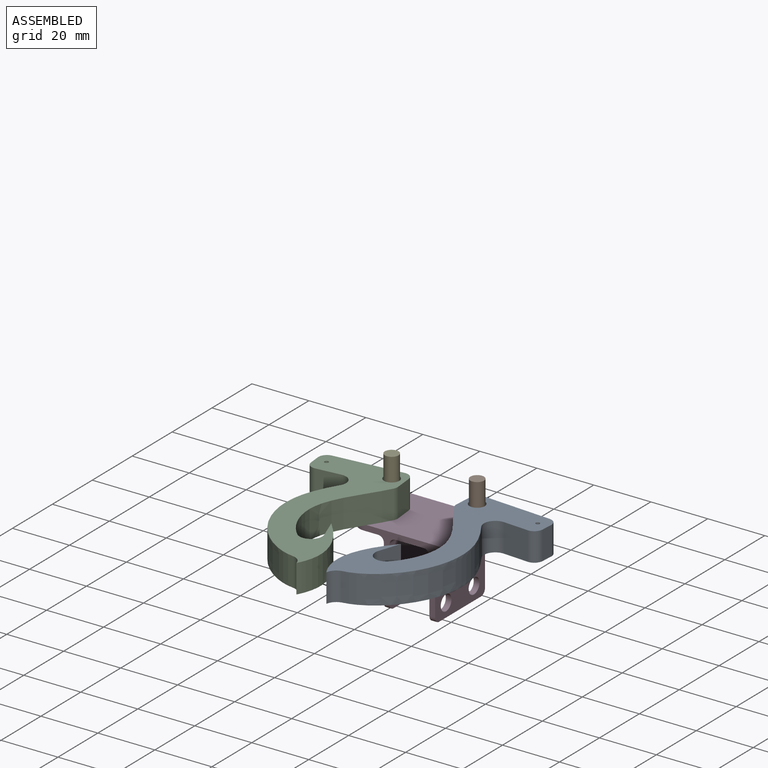
[diagram: assembled view]
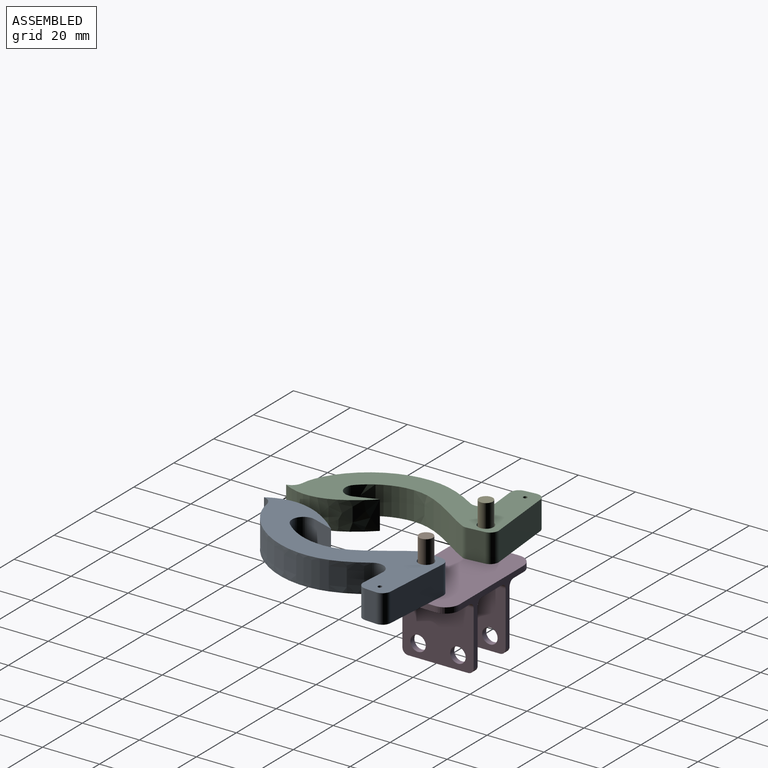
[diagram: assembled view, second angle]
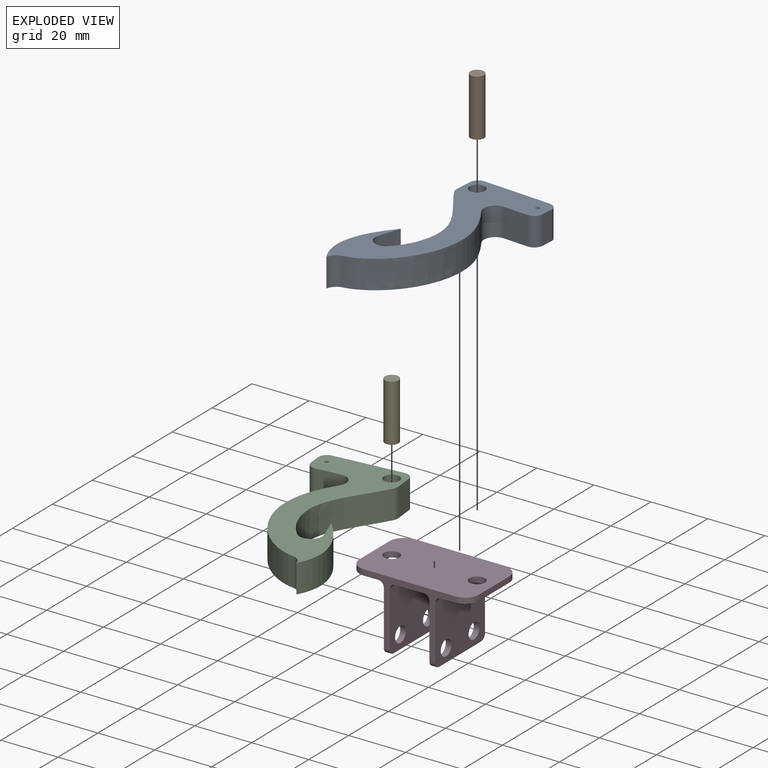
[diagram: exploded view]
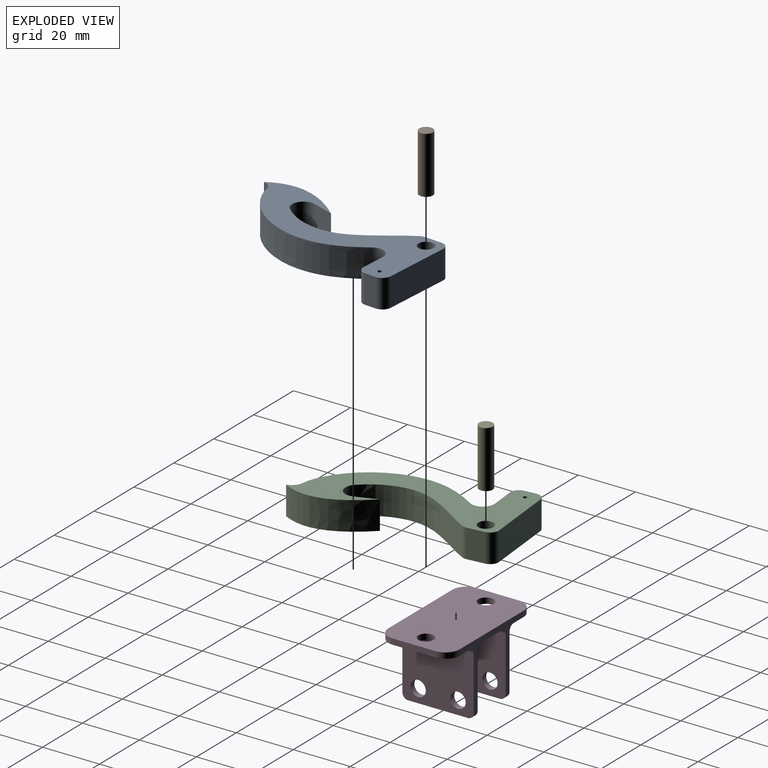
[diagram: exploded view, second angle]
ASSEMBLY  parts=5 mates=4
PART A: 19 faces, bbox 68.7x35.1x10 mm
  f0: extruded ~28.44x10mm, area 310.7mm2, adj f1,f10,f11,f18
  f1: plane 10x7.67mm, normal (0.26,-0.97,0), area 79.3mm2, adj f0,f10,f11,f16
  f2: extruded ~40.74x14.43mm, area 463.6mm2, adj f10,f11,f12,f16
  f3: plane 10x6.16mm, normal (0,1,0), area 61.6mm2, adj f10,f11,f12,f13
  f4: plane 24x10mm, normal (-1,0,0), area 240mm2, adj f10,f11,f13,f14
  f5: plane 10x4mm, normal (0,-1,0), area 40mm2, adj f10,f11,f14,f15
  f6: plane 10x8.76mm, normal (1,0,0), area 87.6mm2, adj f10,f11,f15,f17
  f7: extruded ~48.7x19.96mm, area 594.5mm2, adj f10,f11,f17,f18
  f8: cylinder r=2.7mm len=10mm, axis (0,0,-1), area 169.6mm2, adj f10,f11
  f9: cylinder r=0.7mm len=10mm, axis (0,0,-1), area 44mm2, adj f10,f11
  f10: plane 68.66x35.06mm, normal (0,0,1), area 915.5mm2, adj f0,f1,f2,f3,f4,f5,f6,f7
  f11: plane 68.66x35.06mm, normal (0,0,-1), area 915.5mm2, adj f0,f1,f2,f3,f4,f5,f6,f7
  f12: cylinder r=3mm len=10mm, axis (0,0,-1), area 16.8mm2, adj f2,f3,f10,f11
  f13: cylinder r=3mm len=10mm, axis (0,0,-1), area 47.1mm2, adj f3,f4,f10,f11
  f14: cylinder r=3mm len=10mm, axis (0,0,-1), area 47.1mm2, adj f4,f5,f10,f11
  f15: cylinder r=3mm len=10mm, axis (0,0,-1), area 47.1mm2, adj f5,f6,f10,f11
  f16: cylinder r=4mm len=10mm, axis (0,0,-1), area 108mm2, adj f1,f2,f10,f11
  f17: cylinder r=4mm len=10mm, axis (0,0,-1), area 88.7mm2, adj f6,f7,f10,f11
  f18: cylinder r=4mm len=10mm, axis (0,0,-1), area 50.6mm2, adj f0,f7,f10,f11
PART B: 3 faces, bbox 4.8x4.8x20 mm
  f0: cylinder r=2.4mm len=20mm, axis (0,0,-1), area 301.6mm2, adj f1,f2
  f1: plane 4.8x4.8mm, normal (0,0,1), area 18.1mm2, adj f0
  f2: plane 4.8x4.8mm, normal (0,0,-1), area 18.1mm2, adj f0
PART C: same geometry as A
PART D: 32 faces, bbox 42x25x25 mm
  f0: plane 25x21mm, normal (1,0,0), area 477.5mm2, adj f4,f6,f15,f18,f19,f24,f25,f28
  f1: plane 25x21mm, normal (-1,0,0), area 477.5mm2, adj f4,f6,f15,f18,f19,f24,f25,f30
  f2: plane 25x21mm, normal (1,0,0), area 477.5mm2, adj f4,f6,f14,f16,f17,f26,f27,f29
  f3: plane 25x21mm, normal (-1,0,0), area 477.5mm2, adj f4,f6,f14,f16,f17,f26,f27,f31
  f4: plane 32x23mm, normal (0,-1,0), area 151.4mm2, adj f0,f1,f2,f3,f8,f9,f10,f13
  f5: plane 15x2mm, normal (1,0,0), area 30mm2, adj f8,f9,f20,f21
  f6: plane 32x23mm, normal (0,1,0), area 151.4mm2, adj f0,f1,f2,f3,f8,f9,f10,f13
  f7: cylinder r=2.7mm len=5.4mm, axis (0,0,-1), area 33.9mm2, adj f8,f9
  f8: plane 25x10mm, normal (0,0,1), area 216.4mm2, adj f4,f5,f6,f7,f20,f21,f28
  f9: plane 42x25mm, normal (0,0,-1), area 982.7mm2, adj f4,f5,f6,f7,f11,f12,f20,f21
  f10: plane 25x10mm, normal (0,0,1), area 250mm2, adj f4,f6,f29,f30
  f11: plane 15x2mm, normal (-1,0,0), area 30mm2, adj f9,f13,f22,f23
  f12: cylinder r=2.7mm len=5.4mm, axis (0,0,-1), area 33.9mm2, adj f9,f13
  f13: plane 25x10mm, normal (0,0,1), area 216.4mm2, adj f4,f6,f11,f12,f22,f23,f31
  f14: plane 21x2mm, normal (0,0,1), area 42mm2, adj f2,f3,f26,f27
  f15: plane 21x2mm, normal (0,0,1), area 42mm2, adj f0,f1,f24,f25
  f16: cylinder r=2.7mm len=5.4mm, axis (-1,0,0), area 33.9mm2, adj f2,f3
  f17: cylinder r=2.7mm len=5.4mm, axis (-1,0,0), area 33.9mm2, adj f2,f3
  f18: cylinder r=2.7mm len=5.4mm, axis (1,0,0), area 33.9mm2, adj f0,f1
  f19: cylinder r=2.7mm len=5.4mm, axis (1,0,0), area 33.9mm2, adj f0,f1
  f20: cylinder r=5mm len=5mm, axis (0,0,1), area 15.7mm2, adj f5,f6,f8,f9
  f21: cylinder r=5mm len=5mm, axis (0,0,-1), area 15.7mm2, adj f4,f5,f8,f9
  f22: cylinder r=5mm len=5mm, axis (0,0,-1), area 15.7mm2, adj f6,f9,f11,f13
  f23: cylinder r=5mm len=5mm, axis (0,0,1), area 15.7mm2, adj f4,f9,f11,f13
  f24: cylinder r=2mm len=2mm, axis (-1,0,0), area 6.3mm2, adj f0,f1,f4,f15
  f25: cylinder r=2mm len=2mm, axis (1,0,0), area 6.3mm2, adj f0,f1,f6,f15
  f26: cylinder r=2mm len=2mm, axis (1,0,0), area 6.3mm2, adj f2,f3,f4,f14
  f27: cylinder r=2mm len=2mm, axis (-1,0,0), area 6.3mm2, adj f2,f3,f6,f14
  f28: cylinder r=2mm len=25mm, axis (0,1,0), area 78.5mm2, adj f0,f4,f6,f8
  f29: cylinder r=2mm len=25mm, axis (0,1,0), area 78.5mm2, adj f2,f4,f6,f10
  f30: cylinder r=2mm len=25mm, axis (0,-1,0), area 78.5mm2, adj f1,f4,f6,f10
  f31: cylinder r=2mm len=25mm, axis (0,-1,0), area 78.5mm2, adj f3,f4,f6,f13
PART E: same geometry as B
PLACE A rot(axis=(0.68,-0.73,0),180deg) t=(-3.43,-24.76,30.51)mm
PLACE B t=(2.74,0.52,33.51)mm
PLACE C rot(axis=(0,0,-1),84.5deg) t=(-20.41,-24.59,30.51)mm
PLACE D rot(axis=(0,-1,0),180deg) t=(-12.26,0.52,25.51)mm fixed
PLACE E t=(-27.26,0.52,33.51)mm
MATE revolute A.f8 <-> D.f12  axis (0,0,-1) through (2.74,0.52,25.51)mm
MATE revolute C.f8 <-> D.f7  axis (0,0,-1) through (-27.26,0.52,25.51)mm
MATE fastened B.f0 <-> D.f12  axis (0,0,-1) through (2.74,0.52,23.51)mm
MATE fastened E.f0 <-> D.f7  axis (0,0,-1) through (-27.26,0.52,23.51)mm
